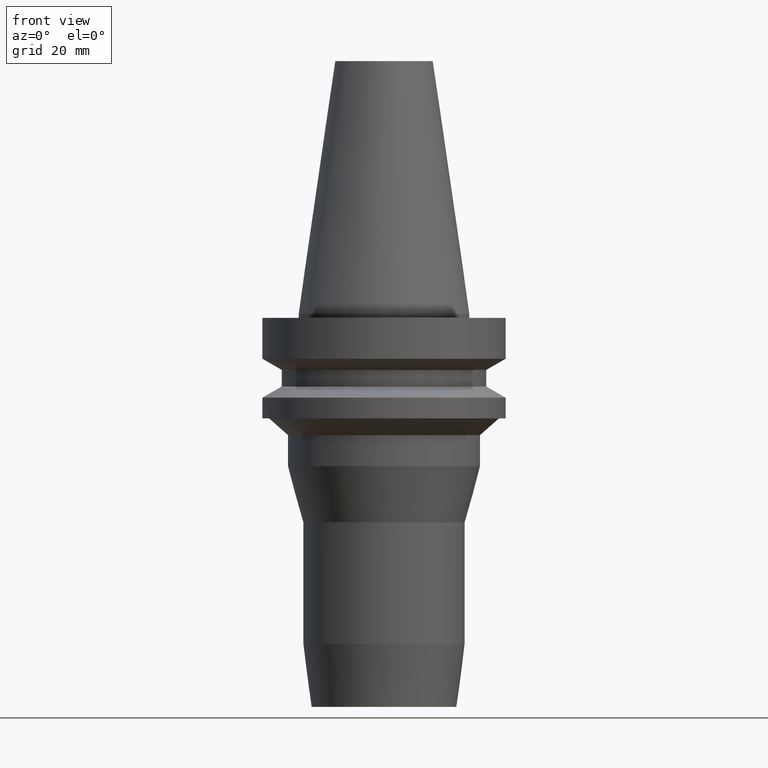
[diagram: clean part render]
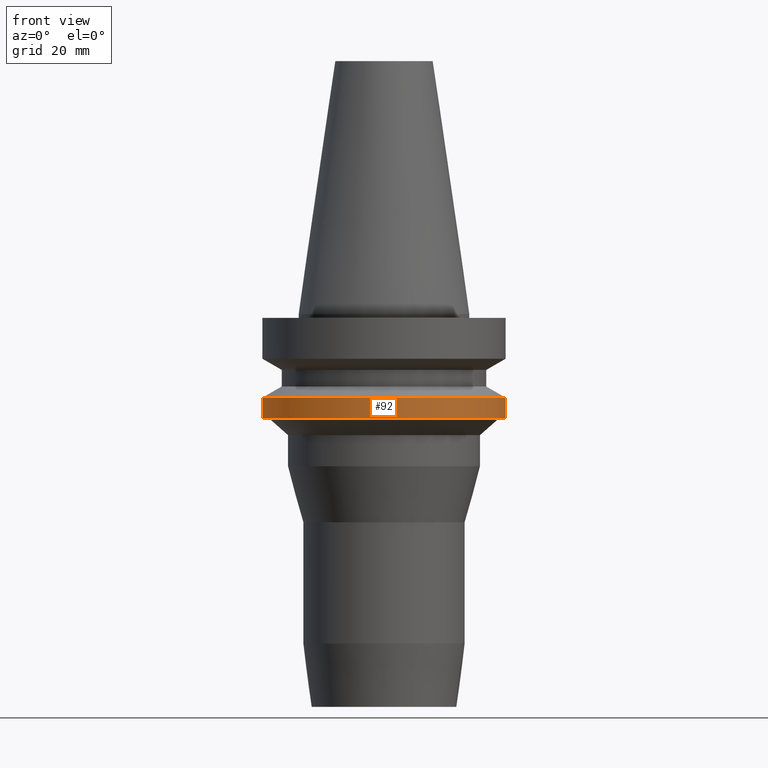
[diagram: same view with one face highlighted and labeled with its STEP entity id]
A machine part, front view. The second image highlights one B-rep face of the part: STEP entity #92.
In plain terms, the highlighted cylindrical surface (bore or boss wall) has radius 31.5 mm, axis along (0, -0, -1).
Its self-contained STEP definition (entity closure, byte-faithful):
#67=EDGE_CURVE('Unnamed[1]',#171,#171,#172,.T.);
#71=EDGE_CURVE('Unnamed[1]',#177,#177,#178,.T.);
#92=ADVANCED_FACE('Unnamed[1]',(#210,#211),#212,.T.);
#171=VERTEX_POINT('',#308);
#172=CIRCLE('',#309,31.5000000000007);
#177=VERTEX_POINT('',#316);
#178=CIRCLE('',#317,31.5000000000004);
#210=FACE_BOUND('',#357,.T.);
#211=FACE_BOUND('',#358,.T.);
#212=CYLINDRICAL_SURFACE('',#359,31.5000000000005);
#308=CARTESIAN_POINT('',(1.32473071268174E-015,31.5000000000007,-21.6344943473346));
#309=AXIS2_PLACEMENT_3D('',#463,#464,#465);
#316=CARTESIAN_POINT('',(1.65327317884891E-015,31.5000000000004,-26.9999999999998));
#317=AXIS2_PLACEMENT_3D('',#469,#470,#471);
#357=EDGE_LOOP('',(#506));
#358=EDGE_LOOP('',(#507));
#359=AXIS2_PLACEMENT_3D('',#508,#509,#510);
#463=CARTESIAN_POINT('',(1.32473071268174E-015,2.89272579633978E-014,-21.6344943473346));
#464=DIRECTION('',(6.12323399573677E-017,-5.47979376128772E-016,-1.0));
#465=DIRECTION('',(2.87269067179761E-032,1.0,-5.47979376128772E-016));
#469=CARTESIAN_POINT('',(1.65327317884891E-015,2.5987071523235E-014,-26.9999999999998));
#470=DIRECTION('',(6.12323399573677E-017,-5.47979376128777E-016,-1.0));
#471=DIRECTION('',(2.87269067179764E-032,1.0,-5.47979376128777E-016));
#506=ORIENTED_EDGE('',*,*,#71,.F.);
#507=ORIENTED_EDGE('',*,*,#67,.T.);
#508=CARTESIAN_POINT('',(1.48900194576533E-015,2.74571647433164E-014,-24.3172471736672));
#509=DIRECTION('',(6.12323399573677E-017,-5.47979376128774E-016,-1.0));
#510=DIRECTION('',(2.87269067179762E-032,1.0,-5.47979376128774E-016));